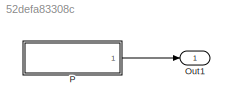
MODEL slx_52defa83308c
KIND model
CONFIG AbsTol = auto
CONFIG EnableMultiTasking = off
CONFIG FixedStep = auto
CONFIG MaxStep = auto
CONFIG MinStep = auto
CONFIG RelTol = 1e-3
CONFIG SampleTimeConstraint = Unconstrained
CONFIG Solver = FixedStepDiscrete
CONFIG SolverName = FixedStepDiscrete
CONFIG StartTime = 0.0
CONFIG StopTime = 10.0
BLOCK [Outport] Out1
  IconDisplay = Port number
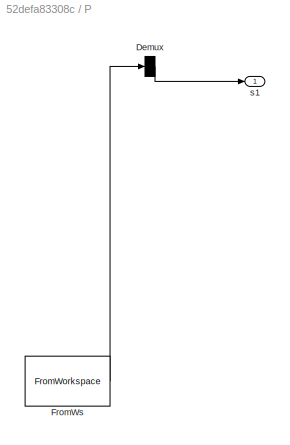
BLOCK [SubSystem] P
  ClipboardFcn = sigbuilder_block('clipboard');
  CloseFcn = sigbuilder_block('close');
  ContinueFcn = sigbuilder_block('continue');
  CopyFcn = sigbuilder_block('copy');
  DeleteFcn = sigbuilder_block('delete');
  LoadFcn = sigbuilder_block('load',[50 52 520 400 ]);
  MaskHideContents = on
  ModelCloseFcn = sigbuilder_block('modelClose');
  NameChangeFcn = sigbuilder_block('namechange');
  OpenFcn = sigbuilder_block('open');
  PauseFcn = sigbuilder_block('pause');
  Ports = [0, 1]
  PreSaveFcn = sigbuilder_block('preSave');
  RequestExecContextInheritance = off
  StartFcn = sigbuilder_block('start');
  StopFcn = sigbuilder_block('stop');
  Tag = STV Subsys
  Variant = off
BLOCK [Demux] P/Demux
  Outputs = 1
  Ports = [1, 1]
  Tag = STV Demux
BLOCK [FromWorkspace] P/FromWs
  SampleTime = 0
  Tag = STV FromWs
  VariableName = tuvar
BLOCK [Outport] P/s1
  IconDisplay = Port number
  Tag = STV Outport
LINE P/Demux:1 -> P/s1:1
LINE P/FromWs:1 -> P/Demux:1
LINE P:1 -> Out1:1
